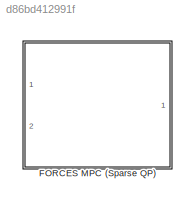
MODEL slx_d86bd412991f
KIND library
CONFIG AbsTol = auto
CONFIG EnableMultiTasking = off
CONFIG FixedStep = auto
CONFIG MaxStep = auto
CONFIG MinStep = auto
CONFIG RelTol = 1e-3
CONFIG SampleTimeConstraint = Unconstrained
CONFIG Solver = VariableStepAuto
CONFIG SolverName = VariableStepAuto
CONFIG StartTime = 0.0
CONFIG StopTime = 10.0
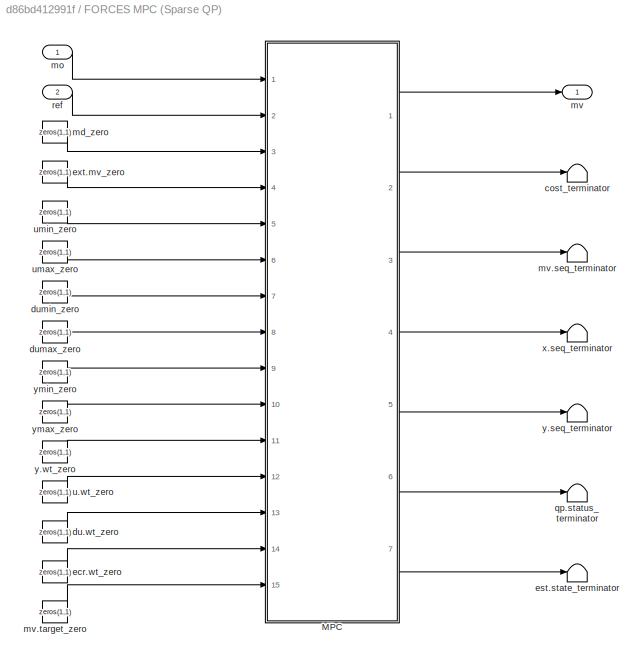
BLOCK [SubSystem] FORCES MPC (Sparse QP)
  InitFcn = forcesmpcblock_InitFcn
  Ports = [2, 1]
  RequestExecContextInheritance = off
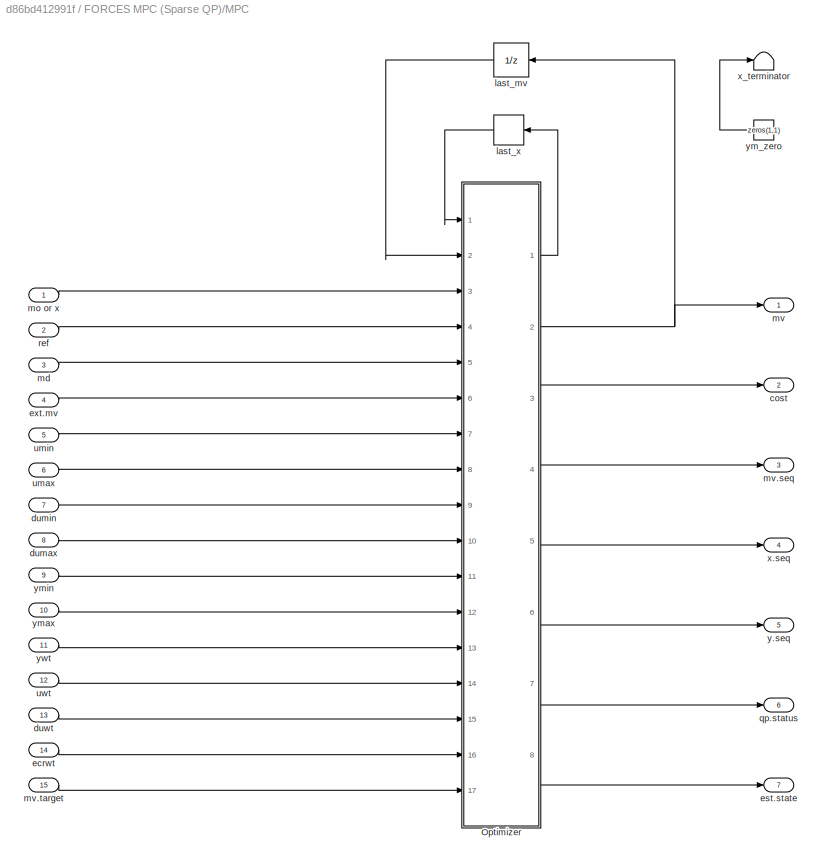
BLOCK [SubSystem] FORCES MPC (Sparse QP)/MPC
  Ports = [15, 7]
  RequestExecContextInheritance = off
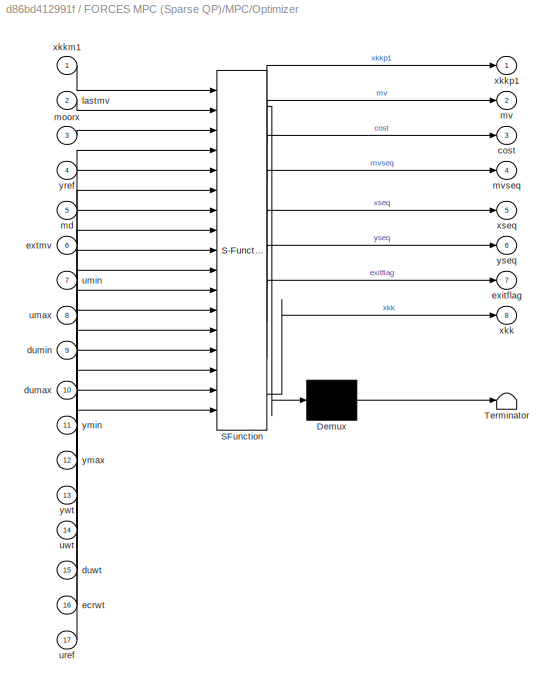
BLOCK [SubSystem] FORCES MPC (Sparse QP)/MPC/Optimizer
  ErrorFcn = Stateflow.Translate.translate
  PermitHierarchicalResolution = ExplicitOnly
  Ports = [17, 8]
  RequestExecContextInheritance = off
  SFBlockType = MATLAB Function
  TreatAsAtomicUnit = on
BLOCK [Demux] FORCES MPC (Sparse QP)/MPC/Optimizer/ Demux 
  Outputs = 1
  Ports = [1, 1]
BLOCK [S-Function] FORCES MPC (Sparse QP)/MPC/Optimizer/ SFunction 
  EnableBusSupport = off
  FunctionName = sf_sfun
  Parameters = MPCstruct
  PortCounts = [17 9]
  Ports = [17, 9]
  SFcnIsStateOwnerBlock = off
  SFunctionDeploymentMode = off
  Tag = Stateflow S-Function 2
BLOCK [Terminator] FORCES MPC (Sparse QP)/MPC/Optimizer/ Terminator 
BLOCK [Outport] FORCES MPC (Sparse QP)/MPC/Optimizer/cost
  IconDisplay = Port number
  Port = 3
BLOCK [Inport] FORCES MPC (Sparse QP)/MPC/Optimizer/dumax
  IconDisplay = Port number
  Port = 10
BLOCK [Inport] FORCES MPC (Sparse QP)/MPC/Optimizer/dumin
  IconDisplay = Port number
  Port = 9
BLOCK [Inport] FORCES MPC (Sparse QP)/MPC/Optimizer/duwt
  IconDisplay = Port number
  Port = 15
BLOCK [Inport] FORCES MPC (Sparse QP)/MPC/Optimizer/ecrwt
  IconDisplay = Port number
  Port = 16
BLOCK [Outport] FORCES MPC (Sparse QP)/MPC/Optimizer/exitflag
  IconDisplay = Port number
  Port = 7
BLOCK [Inport] FORCES MPC (Sparse QP)/MPC/Optimizer/extmv
  IconDisplay = Port number
  Port = 6
BLOCK [Inport] FORCES MPC (Sparse QP)/MPC/Optimizer/lastmv
  IconDisplay = Port number
  Port = 2
BLOCK [Inport] FORCES MPC (Sparse QP)/MPC/Optimizer/md
  IconDisplay = Port number
  Port = 5
BLOCK [Inport] FORCES MPC (Sparse QP)/MPC/Optimizer/moorx
  IconDisplay = Port number
  Port = 3
BLOCK [Outport] FORCES MPC (Sparse QP)/MPC/Optimizer/mv
  IconDisplay = Port number
  Port = 2
BLOCK [Outport] FORCES MPC (Sparse QP)/MPC/Optimizer/mvseq
  IconDisplay = Port number
  Port = 4
BLOCK [Inport] FORCES MPC (Sparse QP)/MPC/Optimizer/umax
  IconDisplay = Port number
  Port = 8
BLOCK [Inport] FORCES MPC (Sparse QP)/MPC/Optimizer/umin
  IconDisplay = Port number
  Port = 7
BLOCK [Inport] FORCES MPC (Sparse QP)/MPC/Optimizer/uref
  IconDisplay = Port number
  Port = 17
BLOCK [Inport] FORCES MPC (Sparse QP)/MPC/Optimizer/uwt
  IconDisplay = Port number
  Port = 14
BLOCK [Outport] FORCES MPC (Sparse QP)/MPC/Optimizer/xkk
  IconDisplay = Port number
  Port = 8
BLOCK [Inport] FORCES MPC (Sparse QP)/MPC/Optimizer/xkkm1
  IconDisplay = Port number
BLOCK [Outport] FORCES MPC (Sparse QP)/MPC/Optimizer/xkkp1
  IconDisplay = Port number
BLOCK [Outport] FORCES MPC (Sparse QP)/MPC/Optimizer/xseq
  IconDisplay = Port number
  Port = 5
BLOCK [Inport] FORCES MPC (Sparse QP)/MPC/Optimizer/ymax
  IconDisplay = Port number
  Port = 12
BLOCK [Inport] FORCES MPC (Sparse QP)/MPC/Optimizer/ymin
  IconDisplay = Port number
  Port = 11
BLOCK [Inport] FORCES MPC (Sparse QP)/MPC/Optimizer/yref
  IconDisplay = Port number
  Port = 4
BLOCK [Outport] FORCES MPC (Sparse QP)/MPC/Optimizer/yseq
  IconDisplay = Port number
  Port = 6
BLOCK [Inport] FORCES MPC (Sparse QP)/MPC/Optimizer/ywt
  IconDisplay = Port number
  Port = 13
BLOCK [Outport] FORCES MPC (Sparse QP)/MPC/cost
  IconDisplay = Port number
  Port = 2
BLOCK [Inport] FORCES MPC (Sparse QP)/MPC/dumax
  IconDisplay = Port number
  Port = 8
BLOCK [Inport] FORCES MPC (Sparse QP)/MPC/dumin
  IconDisplay = Port number
  Port = 7
BLOCK [Inport] FORCES MPC (Sparse QP)/MPC/duwt
  IconDisplay = Port number
  Port = 13
BLOCK [Inport] FORCES MPC (Sparse QP)/MPC/ecrwt
  IconDisplay = Port number
  Port = 14
BLOCK [Outport] FORCES MPC (Sparse QP)/MPC/est.state
  IconDisplay = Port number
  Port = 7
BLOCK [Inport] FORCES MPC (Sparse QP)/MPC/ext.mv
  IconDisplay = Port number
  Port = 4
BLOCK [UnitDelay] FORCES MPC (Sparse QP)/MPC/last_mv
  HasFrameUpgradeWarning = on
  InitialCondition = MV0
  SampleTime = -1
BLOCK [Memory] FORCES MPC (Sparse QP)/MPC/last_x
  InheritSampleTime = on
  InitialCondition = X0
  LinearizeAsDelay = on
BLOCK [Inport] FORCES MPC (Sparse QP)/MPC/md
  IconDisplay = Port number
  Port = 3
BLOCK [Inport] FORCES MPC (Sparse QP)/MPC/mo or x
  IconDisplay = Port number
BLOCK [Outport] FORCES MPC (Sparse QP)/MPC/mv
  IconDisplay = Port number
BLOCK [Outport] FORCES MPC (Sparse QP)/MPC/mv.seq
  IconDisplay = Port number
  Port = 3
BLOCK [Inport] FORCES MPC (Sparse QP)/MPC/mv.target
  IconDisplay = Port number
  Port = 15
BLOCK [Outport] FORCES MPC (Sparse QP)/MPC/qp.status
  IconDisplay = Port number
  Port = 6
BLOCK [Inport] FORCES MPC (Sparse QP)/MPC/ref
  IconDisplay = Port number
  Port = 2
BLOCK [Inport] FORCES MPC (Sparse QP)/MPC/umax
  IconDisplay = Port number
  Port = 6
BLOCK [Inport] FORCES MPC (Sparse QP)/MPC/umin
  IconDisplay = Port number
  Port = 5
BLOCK [Inport] FORCES MPC (Sparse QP)/MPC/uwt
  IconDisplay = Port number
  Port = 12
BLOCK [Outport] FORCES MPC (Sparse QP)/MPC/x.seq
  IconDisplay = Port number
  Port = 4
BLOCK [Terminator] FORCES MPC (Sparse QP)/MPC/x_terminator
BLOCK [Outport] FORCES MPC (Sparse QP)/MPC/y.seq
  IconDisplay = Port number
  Port = 5
BLOCK [Constant] FORCES MPC (Sparse QP)/MPC/ym_zero
  Value = zeros(1,1)
BLOCK [Inport] FORCES MPC (Sparse QP)/MPC/ymax
  IconDisplay = Port number
  Port = 10
BLOCK [Inport] FORCES MPC (Sparse QP)/MPC/ymin
  IconDisplay = Port number
  Port = 9
BLOCK [Inport] FORCES MPC (Sparse QP)/MPC/ywt
  IconDisplay = Port number
  Port = 11
BLOCK [Terminator] FORCES MPC (Sparse QP)/cost_terminator
BLOCK [Constant] FORCES MPC (Sparse QP)/du.wt_zero
  SampleTime = -1
  Value = zeros(1,1)
BLOCK [Constant] FORCES MPC (Sparse QP)/dumax_zero
  SampleTime = -1
  Value = zeros(1,1)
BLOCK [Constant] FORCES MPC (Sparse QP)/dumin_zero
  SampleTime = -1
  Value = zeros(1,1)
BLOCK [Constant] FORCES MPC (Sparse QP)/ecr.wt_zero
  SampleTime = -1
  Value = zeros(1,1)
BLOCK [Terminator] FORCES MPC (Sparse QP)/est.state_terminator
BLOCK [Constant] FORCES MPC (Sparse QP)/ext.mv_zero
  SampleTime = -1
  Value = zeros(1,1)
BLOCK [Constant] FORCES MPC (Sparse QP)/md_zero
  SampleTime = -1
  Value = zeros(1,1)
BLOCK [Inport] FORCES MPC (Sparse QP)/mo
  IconDisplay = Port number
BLOCK [Outport] FORCES MPC (Sparse QP)/mv
  IconDisplay = Port number
BLOCK [Terminator] FORCES MPC (Sparse QP)/mv.seq_terminator
BLOCK [Constant] FORCES MPC (Sparse QP)/mv.target_zero
  SampleTime = -1
  Value = zeros(1,1)
BLOCK [Terminator] FORCES MPC (Sparse QP)/qp.status_terminator
BLOCK [Inport] FORCES MPC (Sparse QP)/ref
  IconDisplay = Port number
  Port = 2
BLOCK [Constant] FORCES MPC (Sparse QP)/u.wt_zero
  SampleTime = -1
  Value = zeros(1,1)
BLOCK [Constant] FORCES MPC (Sparse QP)/umax_zero
  SampleTime = -1
  Value = zeros(1,1)
BLOCK [Constant] FORCES MPC (Sparse QP)/umin_zero
  SampleTime = -1
  Value = zeros(1,1)
BLOCK [Terminator] FORCES MPC (Sparse QP)/x.seq_terminator
BLOCK [Terminator] FORCES MPC (Sparse QP)/y.seq_terminator
BLOCK [Constant] FORCES MPC (Sparse QP)/y.wt_zero
  SampleTime = -1
  Value = zeros(1,1)
BLOCK [Constant] FORCES MPC (Sparse QP)/ymax_zero
  SampleTime = -1
  Value = zeros(1,1)
BLOCK [Constant] FORCES MPC (Sparse QP)/ymin_zero
  SampleTime = -1
  Value = zeros(1,1)
CHART FORCES MPC (Sparse QP)/MPC/Optimizer states=1 transitions=1
  STATE_LABEL 'eML_blk_kernel()'
  STATE_LABEL 'SCRIPT:\nfunction [xkkp1,mv,cost,mvseq,xseq,yseq,exitflag,xkk] = fcn(xkkm1,lastmv,moorx,yref,md,extmv,umin,umax,dumin,dumax,ymin,ymax,ywt,uwt,duwt,ecrwt,uref,MPCstruct)\n% Pre-allocate all the MEX block outputs for the simulation mode %#ok<*PREALL>\nif isempty(MPCstruct)\n    [xkkp1,mv,cost,mvseq,xseq,yseq,exitflag,xkk]= deal(0);\nelse\n    %% states\n    statedata.Plant = reshape(xkkm1(1:MPCstruct.nxp),...<+3186ch>'
